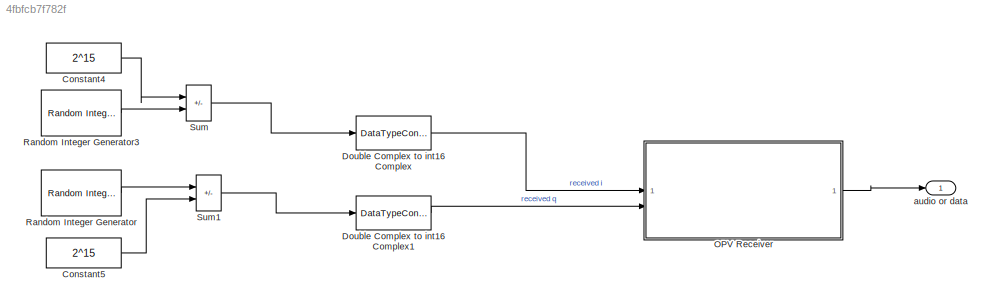
MODEL slx_4fbfcb7f782f
KIND model
CONFIG AbsTol = auto
CONFIG EnableMultiTasking = off
CONFIG FixedStep = auto
CONFIG MaxStep = auto
CONFIG MinStep = auto
CONFIG RelTol = 1e-3
CONFIG SampleTimeConstraint = Unconstrained
CONFIG SolverName = VariableStepAuto
CONFIG StartTime = 0.0
CONFIG StopTime = 10.0
BLOCK [Constant] Constant4
  SampleTime = 1/sample_rate
  Value = 2^15
BLOCK [Constant] Constant5
  SampleTime = 1/sample_rate
  Value = 2^15
BLOCK [DataTypeConversion] Double Complex to int16 Complex
  OutDataTypeStr = fixdt(1,16,0)
  OutMax = [32767]
  OutMin = [-32768]
  RndMeth = Floor
BLOCK [DataTypeConversion] Double Complex to int16 Complex1
  OutDataTypeStr = fixdt(1,16,0)
  OutMax = [32767]
  OutMin = [-32768]
  RndMeth = Floor
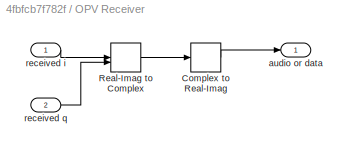
BLOCK [SubSystem] OPV Receiver
  LibrarySourceBlock = hdlsllib/Ports &\nSubsystems/Subsystem
  TreatAsAtomicUnit = on
BLOCK [ComplexToRealImag] OPV Receiver/Complex to Real-Imag
BLOCK [RealImagToComplex] OPV Receiver/Real-Imag to Complex
BLOCK [Outport] OPV Receiver/audio or data
BLOCK [Inport] OPV Receiver/received i
BLOCK [Inport] OPV Receiver/received q
  Port = 2
BLOCK [Reference] Random Integer Generator  REF=commrandsrc3/Random Integer
Generator
  SourceBlock = commrandsrc3/Random Integer\nGenerator
  SourceType = Random Integer Generator
BLOCK [Reference] Random Integer Generator3  REF=commrandsrc3/Random Integer
Generator
  SourceBlock = commrandsrc3/Random Integer\nGenerator
  SourceType = Random Integer Generator
BLOCK [Sum] Sum
  IconShape = rectangular
  Inputs = |-+
BLOCK [Sum] Sum1
  IconShape = rectangular
  Inputs = |+-
BLOCK [Outport] audio or data
LINE Constant4:1 -> Sum:1
LINE Constant5:1 -> Sum1:2
LINE Double Complex to int16 Complex1:1 -> OPV Receiver:2
LINE Double Complex to int16 Complex:1 -> OPV Receiver:1
LINE OPV Receiver/Complex to Real-Imag:1 -> OPV Receiver/audio or data:1
LINE OPV Receiver/Real-Imag to Complex:1 -> OPV Receiver/Complex to Real-Imag:1
LINE OPV Receiver/received i:1 -> OPV Receiver/Real-Imag to Complex:1
LINE OPV Receiver/received q:1 -> OPV Receiver/Real-Imag to Complex:2
LINE OPV Receiver:1 -> audio or data:1
LINE Random Integer Generator3:1 -> Sum:2
LINE Random Integer Generator:1 -> Sum1:1
LINE Sum1:1 -> Double Complex to int16 Complex1:1
LINE Sum:1 -> Double Complex to int16 Complex:1
